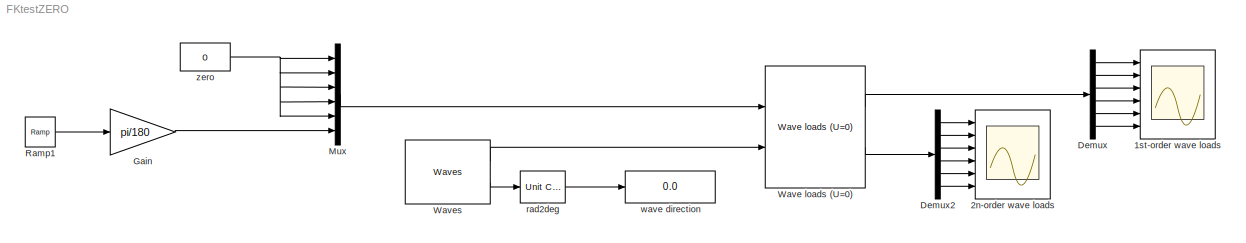
MODEL FKtestZERO
KIND model
BLOCK [Scope] 1st-order wave loads 
  DataFormat = StructureWithTime
  Floating = off
  NumInputPorts = 6
  Ports = [6]
  SampleTime = 0
  TimeRange = 250
  YMax = 4000000~10000000~40000000~10000000~400000000~100000000
  YMin = -4000000~-10000000~-40000000~-10000000~-400000000~-100000000
BLOCK [Scope] 2n-order wave loads
  DataFormat = StructureWithTime
  Floating = off
  LimitDataPoints = off
  NumInputPorts = 6
  Ports = [6]
  SampleTime = 0
  SaveName = ScopeData1
  TimeRange = 400
  YMax = 20000~400000~1~1~1~1000000
  YMin = -60000~-400000~-1~-1~-1~200000
BLOCK [Demux] Demux
  Outputs = 6
  Ports = [1, 6]
BLOCK [Demux] Demux2
  Outputs = 6
  Ports = [1, 6]
BLOCK [Gain] Gain
  Gain = pi/180
  OutDataTypeMode = Inherit via internal rule
  ParameterDataTypeMode = Inherit via internal rule
  SaturateOnIntegerOverflow = off
BLOCK [Mux] Mux
  DisplayOption = bar
  Inputs = 6
  Ports = [6, 1]
BLOCK [Reference] Ramp1  REF=simulink/Sources/Ramp
  FunctionWithSeparateData = off
  Ports = [0, 1]
  RTWMemSecDataConstants = Inherit from model
  RTWMemSecDataInternal = Inherit from model
  RTWMemSecDataParameters = Inherit from model
  RTWMemSecFuncExecute = Inherit from model
  RTWMemSecFuncInitTerm = Inherit from model
  ShowPortLabels = FromPortIcon
  SourceBlock = simulink/Sources/Ramp
  SourceType = Ramp
  SystemSampleTime = -1
  VectorParams1D = on
  X0 = 0
  slope = 1
  start = 0
BLOCK [Reference] Wave loads (U=0)  REF=hydro/Hydro Library/Wave loads (U=0)
  FunctionWithSeparateData = off
  Ports = [2, 2]
  RTWMemSecDataConstants = Inherit from model
  RTWMemSecDataInternal = Inherit from model
  RTWMemSecDataParameters = Inherit from model
  RTWMemSecFuncExecute = Inherit from model
  RTWMemSecFuncInitTerm = Inherit from model
  ShowPortLabels = FromPortIcon
  SourceBlock = hydro/Hydro Library/Wave loads (U=0)
  SourceType = SubSystem
  SystemSampleTime = -1
BLOCK [Reference] Waves  REF=marine_gnc/Environment/Waves/Waves  (lib defined in mdl_10d96c221ba8, mdl_45f1105420c6)
  FunctionWithSeparateData = off
  Omega = 0
  Phase = 0
  Ports = [0, 2]
  Psi = 0
  RTWMemSecDataConstants = Inherit from model
  RTWMemSecDataInternal = Inherit from model
  RTWMemSecDataParameters = Inherit from model
  RTWMemSecFuncExecute = Inherit from model
  RTWMemSecFuncInitTerm = Inherit from model
  ShowPortLabels = FromPortIcon
  SourceBlock = marine_gnc/Environment/Waves/Waves
  SourceType = Waves
  SystemSampleTime = -1
  Wavenum = 0
  Zeta_a = 0
  depth = inf
  dir_cutoff = 0
  disp_flag = off
  energylim = 0.005
  freq_cutoff = 3
  gamma = -1
  hs = 5
  ndir = 10
  nfreq = 20
  omega_peak = -1
  plot_realization = off
  plot_spectrum = off
  psi_mean = 0/(180/pi)
  rand_dir = on
  rand_freq = on
  rand_seed = 0
  spectrum_type = ITTC
  spread = 2
BLOCK [Reference] rad2deg  REF=marine_gnc/Utilities/Math Operations/Unit Conversion  (lib defined in mdl_10d96c221ba8, mdl_45f1105420c6)
  FunctionWithSeparateData = off
  Ports = [1, 1]
  RTWMemSecDataConstants = Inherit from model
  RTWMemSecDataInternal = Inherit from model
  RTWMemSecDataParameters = Inherit from model
  RTWMemSecFuncExecute = Inherit from model
  RTWMemSecFuncInitTerm = Inherit from model
  ShowPortLabels = FromPortIcon
  SourceBlock = marine_gnc/Utilities/Math Operations/Unit Conversion
  SourceType = Unit Conversion
  SystemSampleTime = -1
  in = rad2deg
BLOCK [Display] wave direction
  Decimation = 1
  Lockdown = off
  Ports = [1]
BLOCK [Constant] zero
  Value = 0
LINE Demux2:1 -> 2n-order wave loads:1
LINE Demux2:2 -> 2n-order wave loads:2
LINE Demux2:3 -> 2n-order wave loads:3
LINE Demux2:4 -> 2n-order wave loads:4
LINE Demux2:5 -> 2n-order wave loads:5
LINE Demux2:6 -> 2n-order wave loads:6
LINE Demux:1 -> 1st-order wave loads :1
LINE Demux:2 -> 1st-order wave loads :2
LINE Demux:3 -> 1st-order wave loads :3
LINE Demux:4 -> 1st-order wave loads :4
LINE Demux:5 -> 1st-order wave loads :5
LINE Demux:6 -> 1st-order wave loads :6
LINE Gain:1 -> Mux:6
LINE Mux:1 -> Wave loads (U=0):1
LINE Ramp1:1 -> Gain:1
LINE Wave loads (U=0):1 -> Demux:1
LINE Wave loads (U=0):2 -> Demux2:1
LINE Waves:1 -> Wave loads (U=0):2
LINE Waves:2 -> rad2deg:1
LINE rad2deg:1 -> wave direction:1
NET zero:1 -> Mux:1, Mux:2, Mux:3, Mux:4, Mux:5
note: NET lines group one-source signal fan-out (src -> all destinations, sorted); 1:1 wires keep LINE
